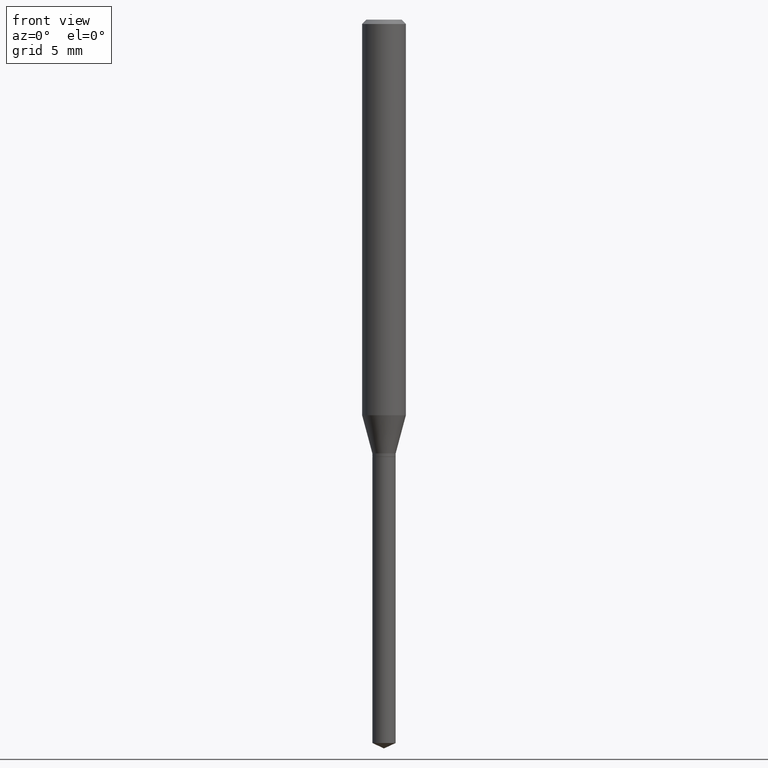
[diagram: clean part render]
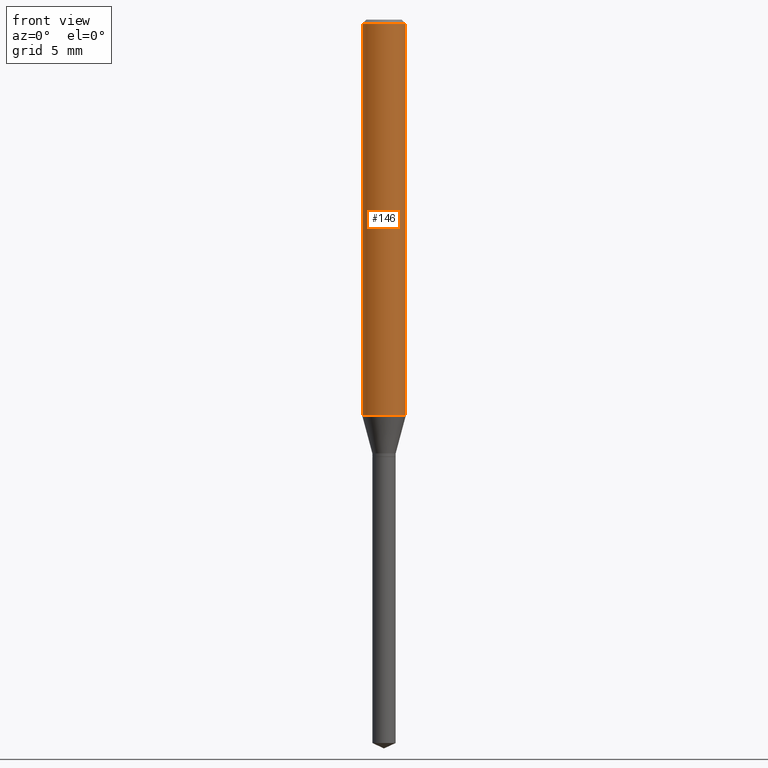
[diagram: same view with one face highlighted and labeled with its STEP entity id]
A machine part, front view. The second image highlights one B-rep face of the part: STEP entity #146.
In plain terms, the highlighted cylindrical surface (edge-blend (fillet) strip) has radius 1.4999 mm, axis along (-0, 0, 1).
Its self-contained STEP definition (entity closure, byte-faithful):
#2 = CARTESIAN_POINT ( 'NONE',  ( 0.05905000000000011628, -4.143976355286858032E-15, -1.068782000251477182 ) ) ;
#26 = CARTESIAN_POINT ( 'NONE',  ( -0.05904999999999999832, -1.466857916424269744E-15, -0.01181000000000007044 ) ) ;
#38 = EDGE_CURVE ( 'NONE', #483, #240, #469, .T. ) ;
#45 = AXIS2_PLACEMENT_3D ( 'NONE', #120, #278, #436 ) ;
#66 = EDGE_CURVE ( 'NONE', #400, #483, #130, .T. ) ;
#69 = DIRECTION ( 'NONE',  ( 1.000000000000000000, -6.982962677686266711E-15, 4.876176775795936353E-29 ) ) ;
#96 = AXIS2_PLACEMENT_3D ( 'NONE', #415, #419, #69 ) ;
#120 = CARTESIAN_POINT ( 'NONE',  ( 2.613673042227141951E-29, -3.731632409169482323E-15, -1.068782000251477182 ) ) ;
#130 = LINE ( 'NONE', #137, #294 ) ;
#135 = DIRECTION ( 'NONE',  ( -2.445468806185136877E-29, 3.491481338843145188E-15, 1.000000000000000000 ) ) ;
#137 = CARTESIAN_POINT ( 'NONE',  ( -0.05905000000000006771, 4.195754854663396409E-16, -2.904631170795525045E-30 ) ) ;
#146 = ADVANCED_FACE ( 'NONE', ( #270 ), #226, .T. ) ;
#150 = CARTESIAN_POINT ( 'NONE',  ( 0.05904999999999999832, -4.535783407291118600E-16, -0.01181000000000007044 ) ) ;
#153 = VERTEX_POINT ( 'NONE', #2 ) ;
#174 = LINE ( 'NONE', #474, #262 ) ;
#176 = ORIENTED_EDGE ( 'NONE', *, *, #66, .F. ) ;
#178 = CARTESIAN_POINT ( 'NONE',  ( 2.888098660104663766E-31, -4.123439461173779647E-17, -0.01181000000000007044 ) ) ;
#198 = ORIENTED_EDGE ( 'NONE', *, *, #448, .T. ) ;
#218 = DIRECTION ( 'NONE',  ( -2.445468806185136877E-29, 3.491481338843145188E-15, 1.000000000000000000 ) ) ;
#222 = EDGE_CURVE ( 'NONE', #400, #153, #373, .T. ) ;
#226 = CYLINDRICAL_SURFACE ( 'NONE', #96, 0.05905000000000006771 ) ;
#240 = VERTEX_POINT ( 'NONE', #150 ) ;
#262 = VECTOR ( 'NONE', #135, 39.37007874015748143 ) ;
#265 = AXIS2_PLACEMENT_3D ( 'NONE', #178, #340, #368 ) ;
#270 = FACE_OUTER_BOUND ( 'NONE', #428, .T. ) ;
#277 = ORIENTED_EDGE ( 'NONE', *, *, #38, .F. ) ;
#278 = DIRECTION ( 'NONE',  ( -2.445468806185136597E-29, 3.491481338843145583E-15, 1.000000000000000000 ) ) ;
#294 = VECTOR ( 'NONE', #218, 39.37007874015748143 ) ;
#335 = CARTESIAN_POINT ( 'NONE',  ( -0.05905000000000011628, -3.312056923703143225E-15, -1.068782000251477182 ) ) ;
#340 = DIRECTION ( 'NONE',  ( -2.445468806185136597E-29, 3.491481338843145583E-15, 1.000000000000000000 ) ) ;
#368 = DIRECTION ( 'NONE',  ( 1.000000000000000000, -6.982962677686266711E-15, 0.000000000000000000 ) ) ;
#373 = CIRCLE ( 'NONE', #45, 0.05905000000000013016 ) ;
#400 = VERTEX_POINT ( 'NONE', #335 ) ;
#415 = CARTESIAN_POINT ( 'NONE',  ( 0.000000000000000000, 0.000000000000000000, 0.000000000000000000 ) ) ;
#419 = DIRECTION ( 'NONE',  ( -2.445468806185136597E-29, 3.491481338843145583E-15, 1.000000000000000000 ) ) ;
#428 = EDGE_LOOP ( 'NONE', ( #176, #433, #198, #277 ) ) ;
#433 = ORIENTED_EDGE ( 'NONE', *, *, #222, .T. ) ;
#436 = DIRECTION ( 'NONE',  ( 1.000000000000000000, -6.982962677686265133E-15, 0.000000000000000000 ) ) ;
#448 = EDGE_CURVE ( 'NONE', #153, #240, #174, .T. ) ;
#469 = CIRCLE ( 'NONE', #265, 0.05904999999999999832 ) ;
#474 = CARTESIAN_POINT ( 'NONE',  ( 0.05905000000000006771, -4.123439461173745257E-16, 2.879382386107503723E-30 ) ) ;
#483 = VERTEX_POINT ( 'NONE', #26 ) ;